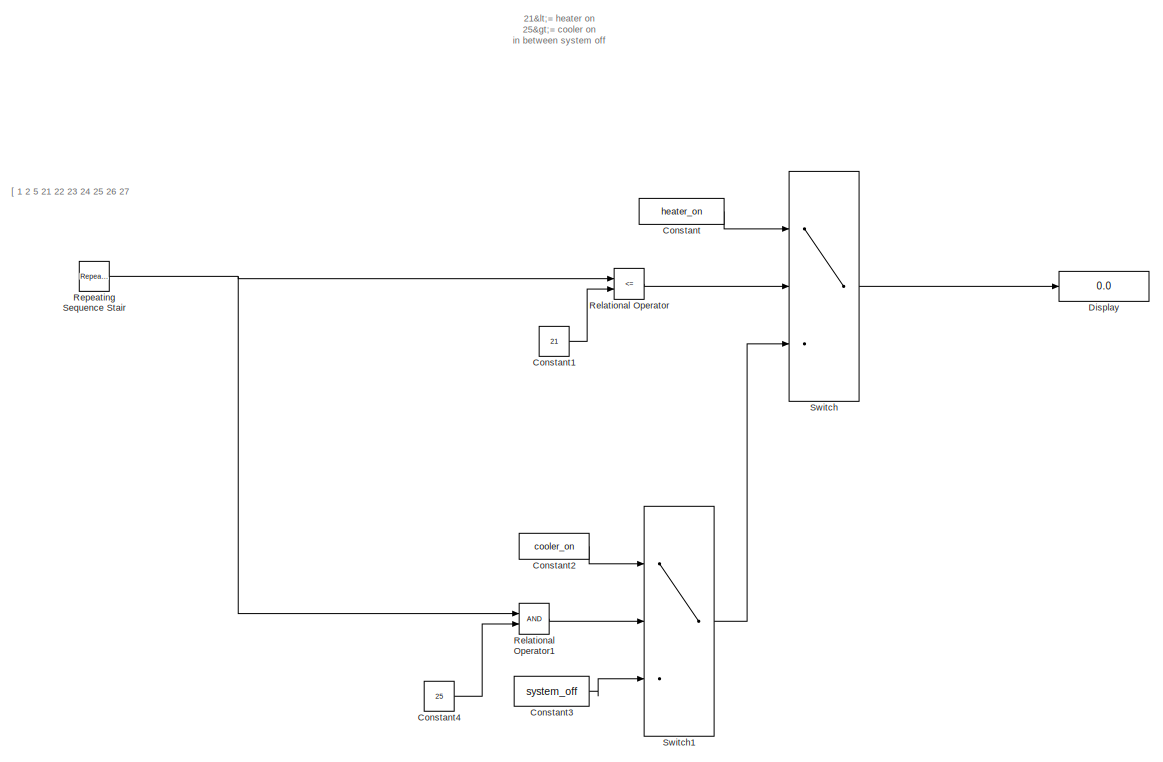
[diagram: root canvas - part 1/2, full width, top band]
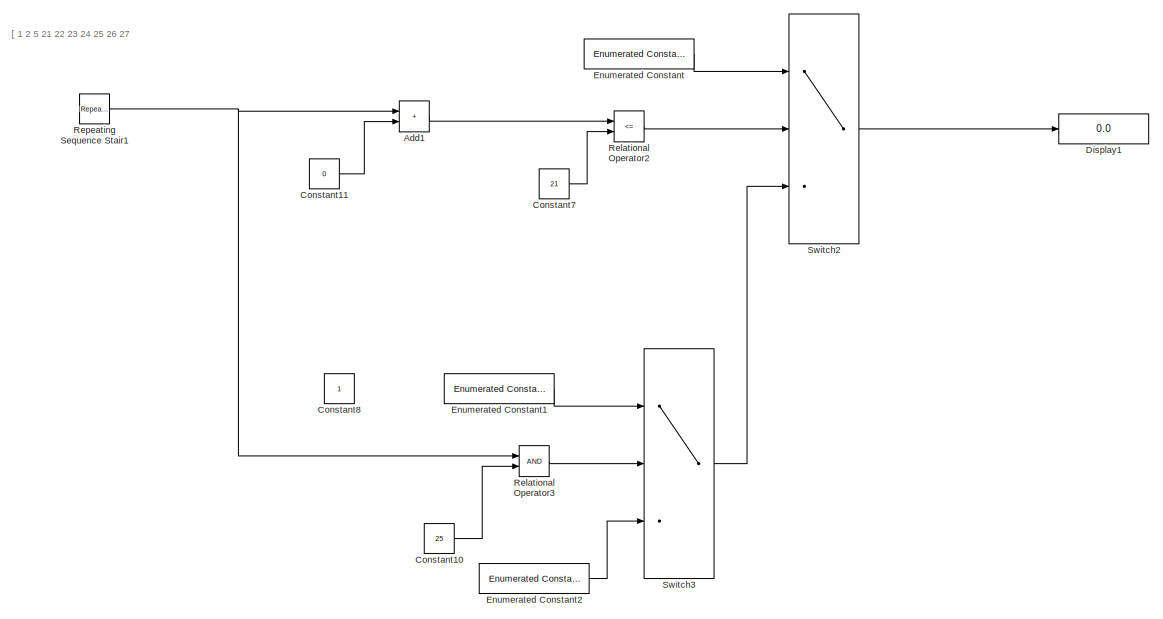
[diagram: root canvas - part 2/2, full width, bottom band]
MODEL slx_b1602ec5b0b8
KIND model
CONFIG AbsTol = auto
CONFIG EnableMultiTasking = off
CONFIG FixedStep = auto
CONFIG MaxStep = auto
CONFIG MinStep = auto
CONFIG RelTol = 1e-3
CONFIG SampleTimeConstraint = Unconstrained
CONFIG Solver = VariableStepAuto
CONFIG SolverName = VariableStepAuto
CONFIG StartTime = 0.0
CONFIG StopTime = 10.0
BLOCK [Sum] Add1
  IconShape = rectangular
  Ports = [2, 1]
BLOCK [Constant] Constant
  Value = heater_on
BLOCK [Constant] Constant1
  Value = 21
BLOCK [Constant] Constant10
  Value = 25
BLOCK [Constant] Constant11
  Value = 0
BLOCK [Constant] Constant2
  Value = cooler_on
BLOCK [Constant] Constant3
  Value = system_off
BLOCK [Constant] Constant4
  Value = 25
BLOCK [Constant] Constant7
  Value = 21
BLOCK [Constant] Constant8
BLOCK [Display] Display
  Decimation = 1
  Ports = [1]
BLOCK [Display] Display1
  Decimation = 1
  Ports = [1]
BLOCK [Reference] Enumerated Constant  REF=simulink/Sources/Enumerated
Constant
  Ports = [0, 1]
  SourceBlock = simulink/Sources/Enumerated\nConstant
  SourceProductBaseCode = SL
  SourceType = Enumerated Constant
BLOCK [Reference] Enumerated Constant1  REF=simulink/Sources/Enumerated
Constant
  Ports = [0, 1]
  SourceBlock = simulink/Sources/Enumerated\nConstant
  SourceProductBaseCode = SL
  SourceType = Enumerated Constant
BLOCK [Reference] Enumerated Constant2  REF=simulink/Sources/Enumerated
Constant
  Ports = [0, 1]
  SourceBlock = simulink/Sources/Enumerated\nConstant
  SourceProductBaseCode = SL
  SourceType = Enumerated Constant
BLOCK [RelationalOperator] Relational Operator
  InputSameDT = off
  Operator = <=
  OutDataTypeStr = boolean
  Ports = [2, 1]
  RndMeth = Simplest
BLOCK [RelationalOperator] Relational Operator1
  InputSameDT = off
  OutDataTypeStr = boolean
  Ports = [2, 1]
  RndMeth = Simplest
BLOCK [RelationalOperator] Relational Operator2
  InputSameDT = off
  Operator = <=
  OutDataTypeStr = boolean
  Ports = [2, 1]
  RndMeth = Simplest
BLOCK [RelationalOperator] Relational Operator3
  InputSameDT = off
  OutDataTypeStr = boolean
  Ports = [2, 1]
  RndMeth = Simplest
BLOCK [Reference] Repeating Sequence Stair  REF=simulink/Sources/Repeating
Sequence
Stair
  Ports = [0, 1]
  SourceBlock = simulink/Sources/Repeating\nSequence\nStair
  SourceProductBaseCode = SL
  SourceType = Repeating Sequence Stair
BLOCK [Reference] Repeating Sequence Stair1  REF=simulink/Sources/Repeating
Sequence
Stair
  Ports = [0, 1]
  SourceBlock = simulink/Sources/Repeating\nSequence\nStair
  SourceProductBaseCode = SL
  SourceType = Repeating Sequence Stair
BLOCK [Switch] Switch
  Criteria = u2 > Threshold
  InputSameDT = off
  SaturateOnIntegerOverflow = off
BLOCK [Switch] Switch1
  Criteria = u2 > Threshold
  InputSameDT = off
  SaturateOnIntegerOverflow = off
BLOCK [Switch] Switch2
  Criteria = u2 > Threshold
  InputSameDT = off
  SaturateOnIntegerOverflow = off
BLOCK [Switch] Switch3
  Criteria = u2 > Threshold
  InputSameDT = off
  SaturateOnIntegerOverflow = off
ANNOTATION (root): 21<= heater on 25>= cooler on in between system off
ANNOTATION (root): [ 1 2 5 21 22 23 24 25 26 27
LINE Add1:1 -> Relational Operator2:1
LINE Constant10:1 -> Relational Operator3:2
LINE Constant11:1 -> Add1:2
LINE Constant1:1 -> Relational Operator:2
LINE Constant2:1 -> Switch1:1
LINE Constant3:1 -> Switch1:3
LINE Constant4:1 -> Relational Operator1:2
LINE Constant7:1 -> Relational Operator2:2
LINE Constant:1 -> Switch:1
LINE Enumerated Constant1:1 -> Switch3:1
LINE Enumerated Constant2:1 -> Switch3:3
LINE Enumerated Constant:1 -> Switch2:1
LINE Relational Operator1:1 -> Switch1:2
LINE Relational Operator2:1 -> Switch2:2
LINE Relational Operator3:1 -> Switch3:2
LINE Relational Operator:1 -> Switch:2
NET Repeating Sequence Stair1:1 -> Add1:1, Relational Operator3:1
NET Repeating Sequence Stair:1 -> Relational Operator1:1, Relational Operator:1
LINE Switch1:1 -> Switch:3
LINE Switch2:1 -> Display1:1
LINE Switch3:1 -> Switch2:3
LINE Switch:1 -> Display:1
note: NET lines group one-source signal fan-out (src -> all destinations, sorted); 1:1 wires keep LINE
